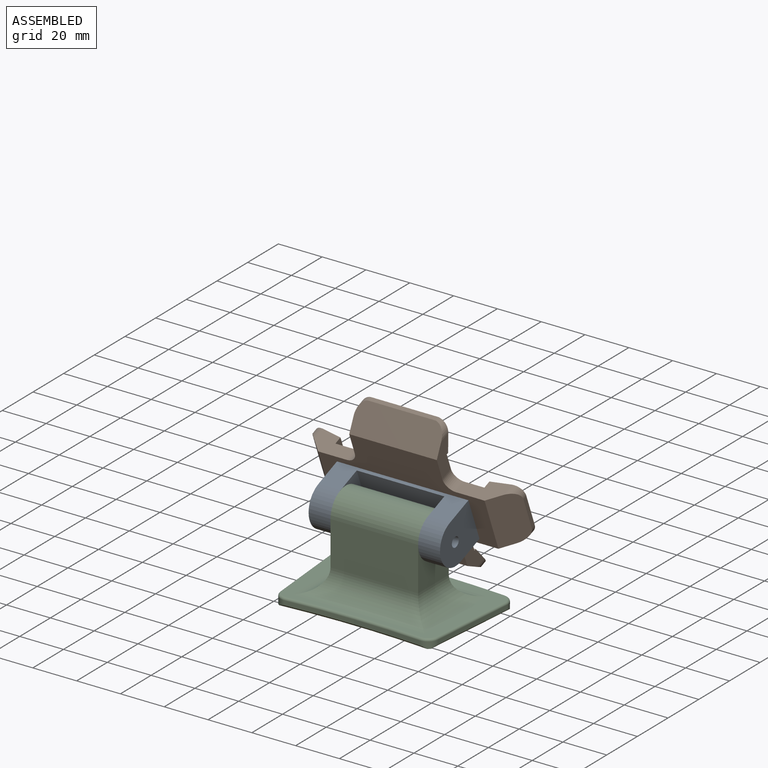
[diagram: assembled view]
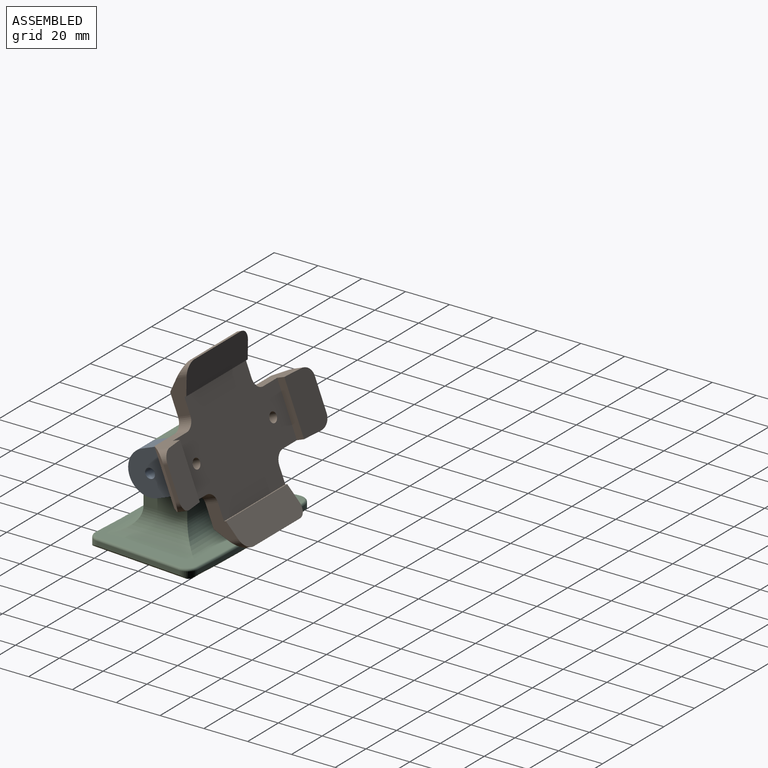
[diagram: assembled view, second angle]
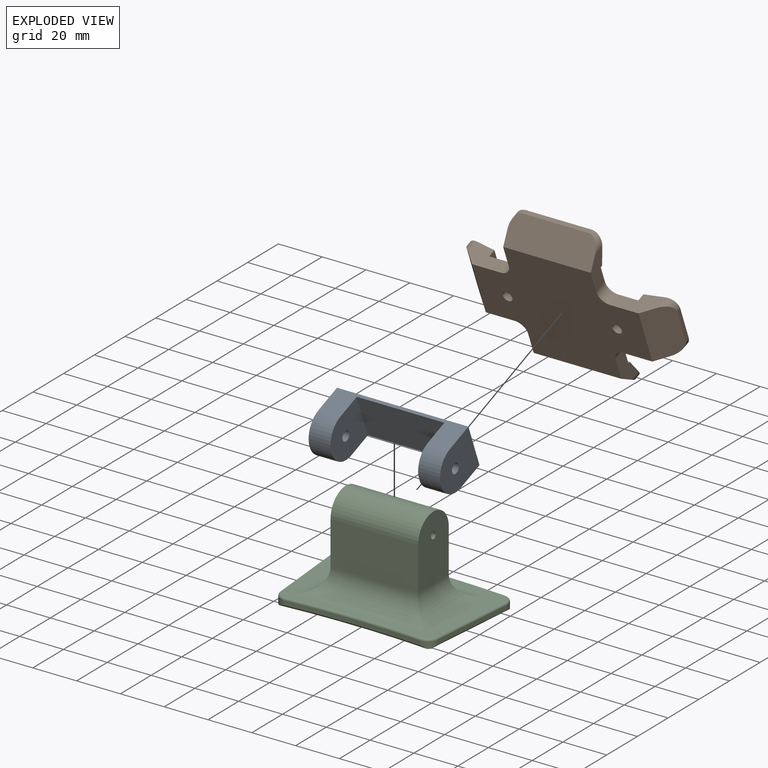
[diagram: exploded view]
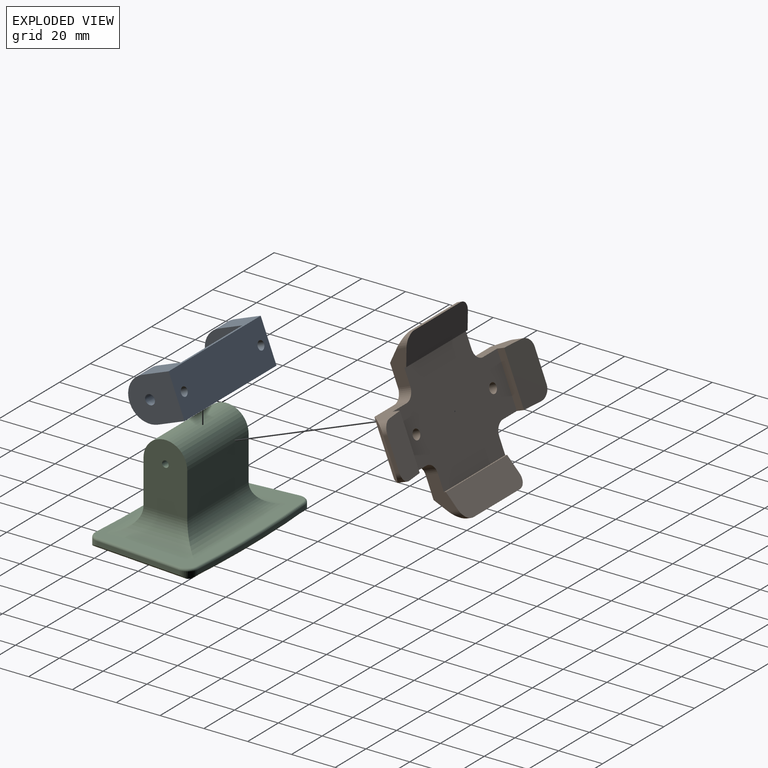
[diagram: exploded view, second angle]
ASSEMBLY  parts=3 mates=2
PART A: 16 faces, bbox 60x20x23 mm
  f0: plane 60x13mm, normal (0,1,0), area 320mm2, adj f1,f3,f4,f5,f6,f7,f14,f15
  f1: plane 23x20mm, normal (-1,0,0), area 401.2mm2, adj f0,f2,f4,f13,f15
  f2: plane 60x13mm, normal (0,-1,0), area 320mm2, adj f1,f3,f4,f5,f6,f7,f14,f15
  f3: plane 23x20mm, normal (1,0,0), area 401.2mm2, adj f0,f2,f4,f12,f14
  f4: plane 60x20mm, normal (0,0,-1), area 1174.9mm2, adj f0,f1,f2,f3,f9,f11
  f5: plane 21.5x20mm, normal (1,0,0), area 371.2mm2, adj f0,f2,f7,f13,f15
  f6: plane 21.5x20mm, normal (-1,0,0), area 371.2mm2, adj f0,f2,f7,f12,f14
  f7: plane 40x20mm, normal (0,0,1), area 800mm2, adj f0,f2,f5,f6
  f8: cone r=0mm half-angle=59deg, axis (0,0,-1), area 14.7mm2, adj f9
  f9: cylinder r=2mm len=6mm, axis (0,0,-1), area 75.4mm2, adj f4,f8
  f10: cone r=0mm half-angle=59deg, axis (0,0,-1), area 14.7mm2, adj f11
  f11: cylinder r=2mm len=6mm, axis (0,0,-1), area 75.4mm2, adj f4,f10
  f12: cylinder r=2.25mm len=10mm, axis (-1,0,0), area 141.4mm2, adj f3,f6
  f13: cylinder r=2.25mm len=10mm, axis (-1,0,0), area 141.4mm2, adj f1,f5
  f14: cylinder r=10mm len=20mm, axis (-1,0,0), area 314.2mm2, adj f0,f2,f3,f6
  f15: cylinder r=10mm len=20mm, axis (1,0,0), area 314.2mm2, adj f0,f1,f2,f5
PART B: 40 faces, bbox 96x75x12 mm
  f0: plane 15x9.98mm, normal (-1,0,0), area 96mm2, adj f6,f15,f16,f20,f25,f28,f31
  f1: plane 15x9.98mm, normal (1,0,0), area 96mm2, adj f6,f15,f16,f20,f25,f29,f30
  f2: plane 18x11.12mm, normal (0,1,0), area 134.4mm2, adj f4,f6,f15,f19,f26,f28,f32
  f3: plane 18x11.12mm, normal (0,-1,0), area 134.4mm2, adj f4,f6,f15,f19,f26,f33,f34
  f4: plane 25x3.53mm, normal (1,0,0), area 88.3mm2, adj f2,f3,f6,f19
  f5: plane 25x3.53mm, normal (-1,0,0), area 88.3mm2, adj f6,f11,f13,f18
  f6: plane 68x50mm, normal (0,0,1), area 2689.7mm2, adj f0,f1,f2,f3,f4,f5,f8,f10
  f7: plane 15x2mm, normal (-1,0,0), area 30mm2, adj f19,f26,f32,f33
  f8: plane 15x9.98mm, normal (-1,0,0), area 96mm2, adj f6,f15,f17,f21,f27,f34,f35
  f9: plane 30x2mm, normal (0,-1,0), area 60mm2, adj f21,f27,f35,f36
  f10: plane 15x9.98mm, normal (1,0,0), area 96mm2, adj f6,f15,f17,f21,f27,f36,f37
  f11: plane 18x11.12mm, normal (0,-1,0), area 134.4mm2, adj f5,f6,f15,f18,f24,f37,f38
  f12: plane 15x2mm, normal (1,0,0), area 30mm2, adj f18,f24,f38,f39
  f13: plane 18x11.12mm, normal (0,1,0), area 134.4mm2, adj f5,f6,f15,f18,f24,f29,f39
  f14: plane 30x2mm, normal (0,1,0), area 60mm2, adj f20,f25,f30,f31
  f15: plane 76x55mm, normal (0,0,-1), area 3089.7mm2, adj f0,f1,f2,f3,f8,f10,f11,f13
  f16: plane 40x0.95mm, normal (0,-1,0), area 38mm2, adj f0,f1,f6,f20
  f17: plane 40x0.95mm, normal (0,1,0), area 38mm2, adj f6,f8,f10,f21
  f18: plane 25x14mm, normal (-0.17,0,0.98), area 344.5mm2, adj f5,f11,f12,f13,f38,f39
  f19: plane 25x14mm, normal (0.17,0,0.98), area 344.5mm2, adj f2,f3,f4,f7,f32,f33
  f20: plane 40x12.5mm, normal (0,-0.37,0.93), area 527.7mm2, adj f0,f1,f14,f16,f30,f31
  f21: plane 40x12.5mm, normal (0,0.37,0.93), area 527.7mm2, adj f8,f9,f10,f17,f35,f36
  f22: cylinder r=2.25mm len=6mm, axis (0,0,1), area 84.8mm2, adj f6,f15
  f23: cylinder r=2.25mm len=6mm, axis (0,0,1), area 84.8mm2, adj f6,f15
  f24: plane 25x10mm, normal (0.71,0,-0.71), area 338.4mm2, adj f11,f12,f13,f15,f38,f39
  f25: plane 40x10mm, normal (0,0.71,-0.71), area 550.5mm2, adj f0,f1,f14,f15,f30,f31
  f26: plane 25x10mm, normal (-0.71,0,-0.71), area 338.4mm2, adj f2,f3,f7,f15,f32,f33
  f27: plane 40x10mm, normal (0,-0.71,-0.71), area 550.5mm2, adj f8,f9,f10,f15,f35,f36
  f28: cylinder r=5mm len=6mm, axis (0,0,-1), area 47.1mm2, adj f0,f2,f6,f15
  f29: cylinder r=5mm len=6mm, axis (0,0,1), area 47.1mm2, adj f1,f6,f13,f15
  f30: cylinder r=5mm len=7mm, axis (0,0,-1), area 24.2mm2, adj f1,f14,f20,f25
  f31: cylinder r=5mm len=7mm, axis (0,0,1), area 24.2mm2, adj f0,f14,f20,f25
  f32: cylinder r=5mm len=7mm, axis (0,0,1), area 27.5mm2, adj f2,f7,f19,f26
  f33: cylinder r=5mm len=7mm, axis (0,0,-1), area 27.5mm2, adj f3,f7,f19,f26
  f34: cylinder r=5mm len=6mm, axis (0,0,1), area 47.1mm2, adj f3,f6,f8,f15
  f35: cylinder r=5mm len=7mm, axis (0,0,-1), area 24.2mm2, adj f8,f9,f21,f27
  f36: cylinder r=5mm len=7mm, axis (0,0,1), area 24.2mm2, adj f9,f10,f21,f27
  f37: cylinder r=5mm len=6mm, axis (0,0,-1), area 47.1mm2, adj f6,f10,f11,f15
  f38: cylinder r=5mm len=7mm, axis (0,0,1), area 27.5mm2, adj f11,f12,f18,f24
  f39: cylinder r=5mm len=7mm, axis (0,0,-1), area 27.5mm2, adj f12,f13,f18,f24
PART C: 32 faces, bbox 80x52.9x44 mm
  f0: plane 77.16x49.17mm, normal (0,0,1), area 1126.2mm2, adj f19,f20,f21,f22,f23,f24,f25,f26
  f1: cylinder r=460mm len=69.92mm, axis (0,0,-1), area 140mm2, adj f12,f15,f18,f20
  f2: plane 39.85x3.48mm, normal (-1,-0.09,0), area 80mm2, adj f11,f15,f16,f24
  f3: cylinder r=410mm len=61.46mm, axis (0,0,-1), area 123mm2, adj f13,f16,f17,f25
  f4: plane 39.85x3.48mm, normal (1,-0.09,0), area 80mm2, adj f14,f17,f18,f21
  f5: plane 77.66x49.39mm, normal (0,0,-1), area 3538.1mm2, adj f11,f12,f13,f14,f15,f16,f17,f18
  f6: plane 40x20mm, normal (0,1,0), area 800mm2, adj f7,f9,f27,f31
  f7: plane 30x20mm, normal (-1,0,0), area 550mm2, adj f6,f8,f10,f28,f31
  f8: plane 40x20mm, normal (0,-1,0), area 800mm2, adj f7,f9,f30,f31
  f9: plane 30x20mm, normal (1,0,0), area 550mm2, adj f6,f8,f10,f29,f31
  f10: cylinder r=1.5mm len=40mm, axis (1,0,0), area 377mm2, adj f7,f9
  f11: plane 45.83x4.75mm, normal (-0.7,-0.06,-0.71), area 62.4mm2, adj f2,f5,f15,f16
  f12: cone r=459mm half-angle=45deg, axis (0,0,1), area 104.7mm2, adj f1,f5,f15,f18
  f13: cone r=411mm half-angle=45deg, axis (0,0,-1), area 92.9mm2, adj f3,f5,f16,f17
  f14: plane 45.83x4.75mm, normal (0.7,-0.06,-0.71), area 62.4mm2, adj f4,f5,f17,f18
  f15: cylinder r=5mm len=5.42mm, axis (0,0,-1), area 19.5mm2, adj f1,f2,f5,f11,f12,f22
  f16: cylinder r=5mm len=5.36mm, axis (0,0,-1), area 19.1mm2, adj f2,f3,f5,f11,f13,f26
  f17: cylinder r=5mm len=5.36mm, axis (0,0,-1), area 19.1mm2, adj f3,f4,f5,f13,f14,f23
  f18: cylinder r=5mm len=5.42mm, axis (0,0,-1), area 19.5mm2, adj f1,f4,f5,f12,f14,f19
  f19: torus R=4mm, axis (0,0,1), area 11.5mm2, adj f0,f18,f20,f21
  f20: torus R=459mm, axis (0,0,1), area 109.9mm2, adj f0,f1,f19,f22
  f21: cylinder r=1mm len=39.94mm, axis (-0.09,-1,0), area 62.8mm2, adj f0,f4,f19,f23
  f22: torus R=4mm, axis (0,0,1), area 11.5mm2, adj f0,f15,f20,f24
  f23: torus R=4mm, axis (0,0,1), area 11.4mm2, adj f0,f17,f21,f25
  f24: cylinder r=1mm len=39.94mm, axis (-0.09,1,0), area 62.8mm2, adj f0,f2,f22,f26
  f25: torus R=411mm, axis (0,0,1), area 96.7mm2, adj f0,f3,f23,f26
  f26: torus R=4mm, axis (0,0,1), area 11.4mm2, adj f0,f16,f24,f25
  f27: cylinder r=10mm len=60mm, axis (-1,0,0), area 742.5mm2, adj f0,f6,f28,f29
  f28: cylinder r=10mm len=40mm, axis (0,-1,0), area 428.3mm2, adj f0,f7,f27,f30
  f29: cylinder r=10mm len=40mm, axis (0,1,0), area 428.3mm2, adj f0,f9,f27,f30
  f30: cylinder r=10mm len=60mm, axis (1,0,0), area 742.5mm2, adj f0,f8,f28,f29
  f31: cylinder r=10mm len=40mm, axis (1,0,0), area 1256.6mm2, adj f6,f7,f8,f9
PLACE A rot(axis=(0,-0.82,0.57),180deg) t=(0,33.98,-21.83)mm
PLACE B rot(axis=(-1,0,0),68.8deg) t=(0,10.54,38.7)mm
PLACE C t=(0,-434.93,0)mm
MATE revolute C.f10 <-> A.f12  axis (-1,0,0) through (-20,-1.58,34)mm
MATE fastened A.f8 <-> B.f23  axis (0,0.93,0.36) through (-25,10.54,38.7)mm
